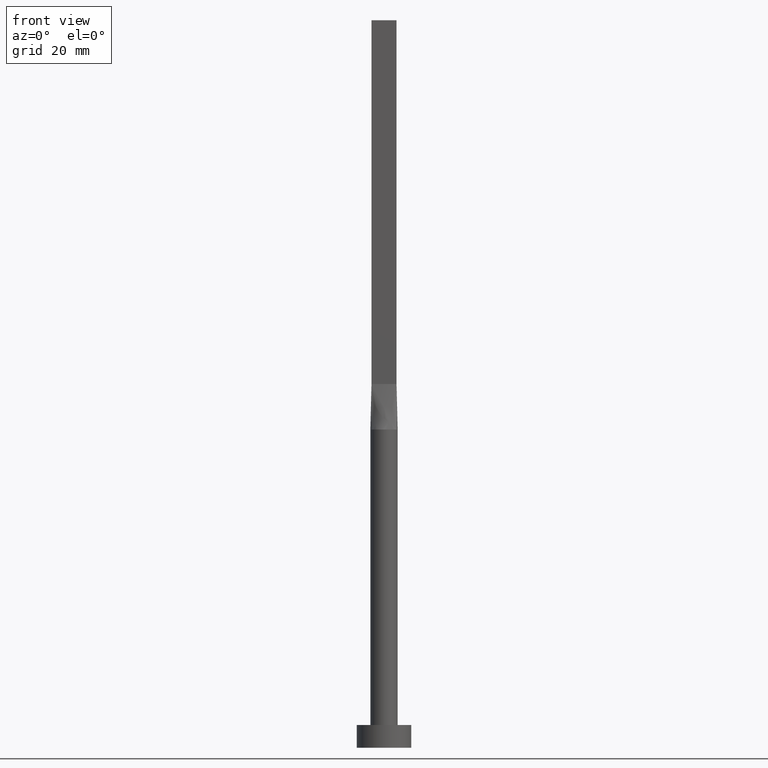
[diagram: clean part render]
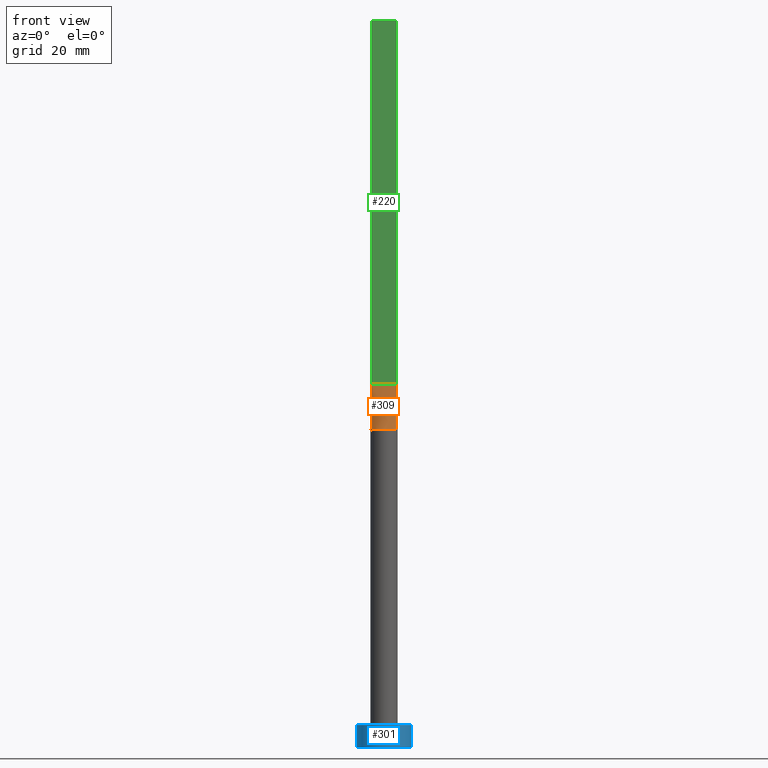
[diagram: same view with three faces highlighted in distinct colors, each labeled with its STEP entity id]
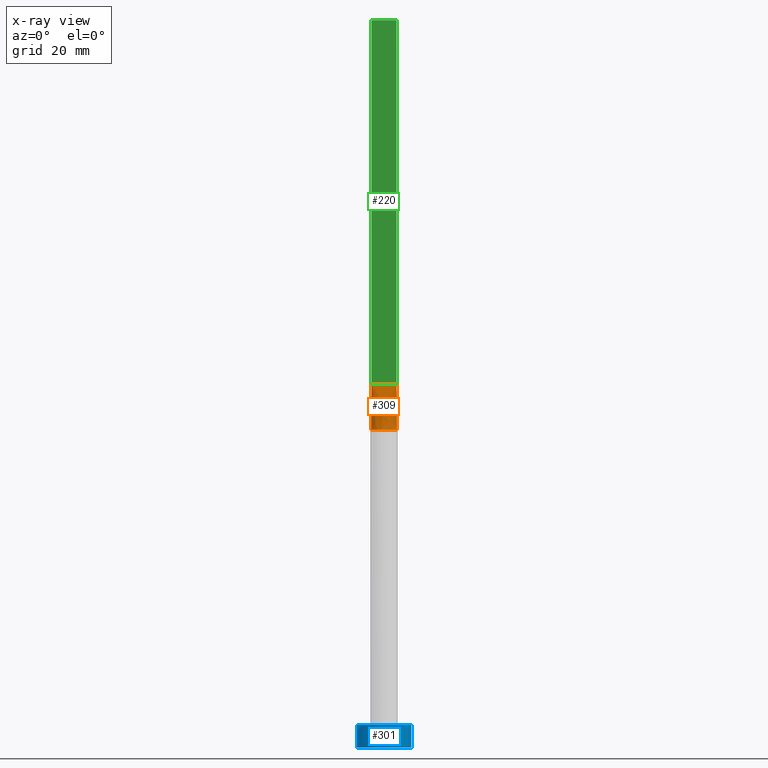
[diagram: x-ray of the same camera — body ghosted, the three highlighted faces saturated]
A machine part, front view with three faces highlighted in distinct colors.
The next image is the same camera in x-ray (body ghosted, the three faces saturated) — at least one of them is partly hidden behind the body in this view.
Their STEP definitions:

[orange] entity #309 — the highlighted face is a freeform B-spline surface patch.
#9 = ORIENTED_EDGE ( 'NONE', *, *, #328, .T. ) ;
#20 = CARTESIAN_POINT ( 'NONE',  ( -2.819380270465311700, -1.025229189260111973, 70.00000000000000000 ) ) ;
#25 = CARTESIAN_POINT ( 'NONE',  ( -1.338960936578150518, -2.706038443291638007, 70.00000000000000000 ) ) ;
#26 = CARTESIAN_POINT ( 'NONE',  ( 0.6998073349918603192, -2.936959335800557902, 70.00000000000001421 ) ) ;
#30 = CARTESIAN_POINT ( 'NONE',  ( 2.750000000000000000, -0.9999999999999997780, 80.00000000000000000 ) ) ;
#31 = CARTESIAN_POINT ( 'NONE',  ( 2.314486317179579533, -1.928337902455807606, 70.00000000000001421 ) ) ;
#48 = CIRCLE ( 'NONE', #387, 3.000000000000000444 ) ;
#56 = CARTESIAN_POINT ( 'NONE',  ( -2.750000000000000000, -0.9999999999999993339, 80.00000000000000000 ) ) ;
#65 = DIRECTION ( 'NONE',  ( 1.000000000000000000, 0.000000000000000000, 0.000000000000000000 ) ) ;
#67 = CARTESIAN_POINT ( 'NONE',  ( -2.115507543051069472, -2.149870311632975373, 70.00000000000000000 ) ) ;
#70 = CARTESIAN_POINT ( 'NONE',  ( 2.625980160873452984, -1.476334031700886618, 70.00000000000001421 ) ) ;
#90 = VERTEX_POINT ( 'NONE', #411 ) ;
#104 = EDGE_CURVE ( 'NONE', #90, #187, #48, .T. ) ;
#107 = CARTESIAN_POINT ( 'NONE',  ( -0.3502136323054380052, -3.000000000000000888, 70.00000000000000000 ) ) ;
#109 = CARTESIAN_POINT ( 'NONE',  ( -2.739088299662391979, -1.246032108968140983, 70.00000000000001421 ) ) ;
#110 = CARTESIAN_POINT ( 'NONE',  ( -2.784690135232656072, -1.012614594630055764, 75.00000000000001421 ) ) ;
#115 = CARTESIAN_POINT ( 'NONE',  ( -1.145833333333333703, -0.9999999999999993339, 79.99999999999998579 ) ) ;
#125 = LINE ( 'NONE', #386, #306 ) ;
#129 = DIRECTION ( 'NONE',  ( 1.000000000000000000, -7.885106708985487801E-17, 0.000000000000000000 ) ) ;
#155 = CARTESIAN_POINT ( 'NONE',  ( 1.338960936578149630, -2.706038443291638007, 69.99999999999998579 ) ) ;
#158 = CARTESIAN_POINT ( 'NONE',  ( 0.4583333333333329263, -0.9999999999999995559, 79.99999999999998579 ) ) ;
#164 = LINE ( 'NONE', #110, #500 ) ;
#167 = DIRECTION ( 'NONE',  ( 0.000000000000000000, 0.000000000000000000, 1.000000000000000000 ) ) ;
#169 = VECTOR ( 'NONE', #201, 1000.000000000000114 ) ;
#174 = VERTEX_POINT ( 'NONE', #509 ) ;
#187 = VERTEX_POINT ( 'NONE', #408 ) ;
#192 = CARTESIAN_POINT ( 'NONE',  ( -1.627925520694712525, -2.539128397820340055, 69.99999999999998579 ) ) ;
#195 = CARTESIAN_POINT ( 'NONE',  ( 2.819380270465311700, -1.025229189260112417, 70.00000000000000000 ) ) ;
#198 = CARTESIAN_POINT ( 'NONE',  ( 0.9166666666666661856, -0.9999999999999995559, 79.99999999999998579 ) ) ;
#200 = CARTESIAN_POINT ( 'NONE',  ( -2.314486317179578645, -1.928337902455806496, 70.00000000000000000 ) ) ;
#201 = DIRECTION ( 'NONE',  ( -0.006937837988376369981, 0.002522850177591328454, 0.9999727504442450510 ) ) ;
#210 = CARTESIAN_POINT ( 'NONE',  ( 2.784690135232656072, -1.012614594630056208, 75.00000000000001421 ) ) ;
#221 = ORIENTED_EDGE ( 'NONE', *, *, #104, .T. ) ;
#235 = VERTEX_POINT ( 'NONE', #504 ) ;
#241 = CARTESIAN_POINT ( 'NONE',  ( -2.291666666666666519, -0.9999999999999993339, 79.99999999999998579 ) ) ;
#246 = CARTESIAN_POINT ( 'NONE',  ( -0.9166666666666670737, -0.9999999999999993339, 79.99999999999998579 ) ) ;
#260 = ORIENTED_EDGE ( 'NONE', *, *, #480, .T. ) ;
#282 = CARTESIAN_POINT ( 'NONE',  ( 0.3502136323054372835, -3.000000000000000444, 70.00000000000001421 ) ) ;
#283 = CARTESIAN_POINT ( 'NONE',  ( -2.520833333333333037, -0.9999999999999993339, 79.99999999999998579 ) ) ;
#286 = CARTESIAN_POINT ( 'NONE',  ( 1.833333333333333037, -0.9999999999999995559, 79.99999999999998579 ) ) ;
#292 = CARTESIAN_POINT ( 'NONE',  ( 2.520833333333333037, -0.9999999999999995559, 79.99999999999998579 ) ) ;
#306 = VECTOR ( 'NONE', #129, 1000.000000000000000 ) ;
#309 = ADVANCED_FACE ( 'NONE', ( #414 ), #501, .T. ) ;
#328 = EDGE_CURVE ( 'NONE', #174, #90, #164, .T. ) ;
#331 = CARTESIAN_POINT ( 'NONE',  ( -0.2291666666666671015, -0.9999999999999993339, 80.00000000000000000 ) ) ;
#334 = CARTESIAN_POINT ( 'NONE',  ( 2.291666666666666519, -0.9999999999999995559, 79.99999999999998579 ) ) ;
#373 = CARTESIAN_POINT ( 'NONE',  ( -1.833333333333333481, -0.9999999999999993339, 79.99999999999998579 ) ) ;
#377 = CARTESIAN_POINT ( 'NONE',  ( 0.2291666666666662688, -0.9999999999999995559, 79.99999999999998579 ) ) ;
#386 = CARTESIAN_POINT ( 'NONE',  ( -2.750000000000000000, -0.9999999999999993339, 80.00000000000000000 ) ) ;
#387 = AXIS2_PLACEMENT_3D ( 'NONE', #569, #167, #65 ) ;
#402 = ORIENTED_EDGE ( 'NONE', *, *, #413, .F. ) ;
#408 = CARTESIAN_POINT ( 'NONE',  ( 2.819430526142641558, -1.025247683279450817, 70.00000000000000000 ) ) ;
#411 = CARTESIAN_POINT ( 'NONE',  ( -2.819413526938078007, -1.025241406939941369, 70.00000000000000000 ) ) ;
#413 = EDGE_CURVE ( 'NONE', #174, #235, #125, .T. ) ;
#414 = FACE_OUTER_BOUND ( 'NONE', #581, .T. ) ;
#425 = LINE ( 'NONE', #210, #169 ) ;
#430 = CARTESIAN_POINT ( 'NONE',  ( 1.145833333333332815, -0.9999999999999995559, 79.99999999999998579 ) ) ;
#467 = CARTESIAN_POINT ( 'NONE',  ( 2.739088299662391979, -1.246032108968142982, 70.00000000000001421 ) ) ;
#469 = CARTESIAN_POINT ( 'NONE',  ( -2.625980160873452540, -1.476334031700885507, 70.00000000000000000 ) ) ;
#480 = EDGE_CURVE ( 'NONE', #187, #235, #425, .T. ) ;
#500 = VECTOR ( 'NONE', #525, 1000.000000000000114 ) ;
#501 = B_SPLINE_SURFACE_WITH_KNOTS ( 'NONE', 3, 1, ( 
 ( #20, #56 ),
 ( #109, #283 ),
 ( #469, #241 ),
 ( #200, #373 ),
 ( #67, #562 ),
 ( #192, #115 ),
 ( #25, #246 ),
 ( #523, #514 ),
 ( #107, #331 ),
 ( #282, #377 ),
 ( #26, #158 ),
 ( #155, #198 ),
 ( #517, #430 ),
 ( #520, #564 ),
 ( #31, #286 ),
 ( #70, #334 ),
 ( #467, #292 ),
 ( #195, #30 ) ),
 .UNSPECIFIED., .F., .F., .F.,
 ( 4, 2, 2, 2, 2, 2, 2, 2, 4 ),
 ( 2, 2 ),
 ( 0.000000000000000000, 0.1250000000000000000, 0.2500000000000000000, 0.3750000000000000000, 0.5000000000000000000, 0.6250000000000000000, 0.7500000000000000000, 0.8750000000000000000, 1.000000000000000000 ),
 ( 0.000000000000000000, 1.000000000000000000 ),
 .UNSPECIFIED. ) ;
#504 = CARTESIAN_POINT ( 'NONE',  ( 2.750000000000000000, -0.9999999999999997780, 80.00000000000000000 ) ) ;
#509 = CARTESIAN_POINT ( 'NONE',  ( -2.750000000000000000, -0.9999999999999993339, 80.00000000000000000 ) ) ;
#514 = CARTESIAN_POINT ( 'NONE',  ( -0.4583333333333337589, -0.9999999999999993339, 79.99999999999998579 ) ) ;
#517 = CARTESIAN_POINT ( 'NONE',  ( 1.627925520694712080, -2.539128397820341831, 70.00000000000001421 ) ) ;
#520 = CARTESIAN_POINT ( 'NONE',  ( 2.115507543051068140, -2.149870311632976705, 69.99999999999998579 ) ) ;
#523 = CARTESIAN_POINT ( 'NONE',  ( -0.6998073349918614294, -2.936959335800558346, 70.00000000000001421 ) ) ;
#525 = DIRECTION ( 'NONE',  ( -0.006937837988376369981, -0.002522850177591328454, -0.9999727504442450510 ) ) ;
#562 = CARTESIAN_POINT ( 'NONE',  ( -1.604166666666666963, -0.9999999999999993339, 79.99999999999998579 ) ) ;
#564 = CARTESIAN_POINT ( 'NONE',  ( 1.604166666666666297, -0.9999999999999995559, 79.99999999999998579 ) ) ;
#569 = CARTESIAN_POINT ( 'NONE',  ( 0.000000000000000000, 0.000000000000000000, 70.00000000000000000 ) ) ;
#581 = EDGE_LOOP ( 'NONE', ( #221, #260, #402, #9 ) ) ;

[blue] entity #301 — the highlighted cylindrical surface (edge-blend (fillet) strip) has radius 6 mm, axis along (-0, -0, -1).
#40 = LINE ( 'NONE', #218, #489 ) ;
#81 = CARTESIAN_POINT ( 'NONE',  ( 6.000000000000000888, 7.347880794884120722E-16, 5.000000000000000000 ) ) ;
#103 = CIRCLE ( 'NONE', #566, 6.000000000000000888 ) ;
#111 = EDGE_CURVE ( 'NONE', #388, #398, #446, .T. ) ;
#113 = DIRECTION ( 'NONE',  ( 0.000000000000000000, 0.000000000000000000, 1.000000000000000000 ) ) ;
#153 = DIRECTION ( 'NONE',  ( -0.000000000000000000, -0.000000000000000000, -1.000000000000000000 ) ) ;
#168 = ORIENTED_EDGE ( 'NONE', *, *, #326, .F. ) ;
#194 = CYLINDRICAL_SURFACE ( 'NONE', #575, 6.000000000000000888 ) ;
#208 = DIRECTION ( 'NONE',  ( -0.000000000000000000, -0.000000000000000000, -1.000000000000000000 ) ) ;
#218 = CARTESIAN_POINT ( 'NONE',  ( 6.000000000000000888, 7.347880794884120722E-16, 5.000000000000000000 ) ) ;
#224 = ORIENTED_EDGE ( 'NONE', *, *, #455, .T. ) ;
#237 = FACE_OUTER_BOUND ( 'NONE', #337, .T. ) ;
#238 = CARTESIAN_POINT ( 'NONE',  ( 6.000000000000000888, 7.347880794884120722E-16, 0.000000000000000000 ) ) ;
#244 = DIRECTION ( 'NONE',  ( 1.000000000000000000, 0.000000000000000000, 0.000000000000000000 ) ) ;
#249 = DIRECTION ( 'NONE',  ( 0.000000000000000000, 0.000000000000000000, 1.000000000000000000 ) ) ;
#259 = LINE ( 'NONE', #296, #451 ) ;
#296 = CARTESIAN_POINT ( 'NONE',  ( -6.000000000000000888, 0.000000000000000000, 5.000000000000000000 ) ) ;
#301 = ADVANCED_FACE ( 'NONE', ( #237 ), #194, .T. ) ;
#326 = EDGE_CURVE ( 'NONE', #358, #570, #103, .T. ) ;
#329 = CARTESIAN_POINT ( 'NONE',  ( 0.000000000000000000, 0.000000000000000000, 5.000000000000000000 ) ) ;
#337 = EDGE_LOOP ( 'NONE', ( #496, #168, #224, #453 ) ) ;
#349 = DIRECTION ( 'NONE',  ( 1.000000000000000000, 0.000000000000000000, 0.000000000000000000 ) ) ;
#358 = VERTEX_POINT ( 'NONE', #393 ) ;
#371 = CARTESIAN_POINT ( 'NONE',  ( 0.000000000000000000, 0.000000000000000000, 5.000000000000000000 ) ) ;
#388 = VERTEX_POINT ( 'NONE', #466 ) ;
#393 = CARTESIAN_POINT ( 'NONE',  ( -6.000000000000000888, 0.000000000000000000, 5.000000000000000000 ) ) ;
#398 = VERTEX_POINT ( 'NONE', #238 ) ;
#446 = CIRCLE ( 'NONE', #534, 6.000000000000000888 ) ;
#451 = VECTOR ( 'NONE', #478, 1000.000000000000000 ) ;
#453 = ORIENTED_EDGE ( 'NONE', *, *, #111, .T. ) ;
#455 = EDGE_CURVE ( 'NONE', #358, #388, #259, .T. ) ;
#464 = DIRECTION ( 'NONE',  ( -1.000000000000000000, 0.000000000000000000, 0.000000000000000000 ) ) ;
#466 = CARTESIAN_POINT ( 'NONE',  ( -6.000000000000000888, 0.000000000000000000, 0.000000000000000000 ) ) ;
#478 = DIRECTION ( 'NONE',  ( -0.000000000000000000, -0.000000000000000000, -1.000000000000000000 ) ) ;
#489 = VECTOR ( 'NONE', #208, 1000.000000000000000 ) ;
#496 = ORIENTED_EDGE ( 'NONE', *, *, #527, .F. ) ;
#527 = EDGE_CURVE ( 'NONE', #570, #398, #40, .T. ) ;
#534 = AXIS2_PLACEMENT_3D ( 'NONE', #563, #113, #349 ) ;
#563 = CARTESIAN_POINT ( 'NONE',  ( 0.000000000000000000, 0.000000000000000000, 0.000000000000000000 ) ) ;
#566 = AXIS2_PLACEMENT_3D ( 'NONE', #329, #249, #244 ) ;
#570 = VERTEX_POINT ( 'NONE', #81 ) ;
#575 = AXIS2_PLACEMENT_3D ( 'NONE', #371, #153, #464 ) ;

[green] entity #220 — the highlighted planar face has unit normal (0, 1, -0).
#1 = LINE ( 'NONE', #88, #5 ) ;
#5 = VECTOR ( 'NONE', #262, 1000.000000000000000 ) ;
#6 = PLANE ( 'NONE',  #38 ) ;
#38 = AXIS2_PLACEMENT_3D ( 'NONE', #499, #98, #184 ) ;
#57 = DIRECTION ( 'NONE',  ( -0.000000000000000000, -0.000000000000000000, -1.000000000000000000 ) ) ;
#88 = CARTESIAN_POINT ( 'NONE',  ( -2.750000000000000000, -0.9999999999999993339, 160.0000000000000000 ) ) ;
#93 = FACE_OUTER_BOUND ( 'NONE', #540, .T. ) ;
#95 = ORIENTED_EDGE ( 'NONE', *, *, #351, .T. ) ;
#98 = DIRECTION ( 'NONE',  ( 7.885106708985487801E-17, 1.000000000000000000, -0.000000000000000000 ) ) ;
#125 = LINE ( 'NONE', #386, #306 ) ;
#129 = DIRECTION ( 'NONE',  ( 1.000000000000000000, -7.885106708985487801E-17, 0.000000000000000000 ) ) ;
#130 = ORIENTED_EDGE ( 'NONE', *, *, #413, .T. ) ;
#139 = VERTEX_POINT ( 'NONE', #536 ) ;
#145 = CARTESIAN_POINT ( 'NONE',  ( 2.750000000000000000, -0.9999999999999997780, 160.0000000000000000 ) ) ;
#174 = VERTEX_POINT ( 'NONE', #509 ) ;
#184 = DIRECTION ( 'NONE',  ( -1.000000000000000000, 7.885106708985487801E-17, 0.000000000000000000 ) ) ;
#203 = CARTESIAN_POINT ( 'NONE',  ( 2.750000000000000000, -0.9999999999999997780, 160.0000000000000000 ) ) ;
#220 = ADVANCED_FACE ( 'NONE', ( #93 ), #6, .F. ) ;
#235 = VERTEX_POINT ( 'NONE', #504 ) ;
#262 = DIRECTION ( 'NONE',  ( -0.000000000000000000, -0.000000000000000000, -1.000000000000000000 ) ) ;
#306 = VECTOR ( 'NONE', #129, 1000.000000000000000 ) ;
#311 = ORIENTED_EDGE ( 'NONE', *, *, #382, .F. ) ;
#315 = VERTEX_POINT ( 'NONE', #203 ) ;
#351 = EDGE_CURVE ( 'NONE', #139, #174, #1, .T. ) ;
#362 = LINE ( 'NONE', #145, #481 ) ;
#372 = DIRECTION ( 'NONE',  ( 1.000000000000000000, -7.885106708985487801E-17, 0.000000000000000000 ) ) ;
#382 = EDGE_CURVE ( 'NONE', #315, #235, #362, .T. ) ;
#383 = EDGE_CURVE ( 'NONE', #139, #315, #506, .T. ) ;
#386 = CARTESIAN_POINT ( 'NONE',  ( -2.750000000000000000, -0.9999999999999993339, 80.00000000000000000 ) ) ;
#413 = EDGE_CURVE ( 'NONE', #174, #235, #125, .T. ) ;
#420 = ORIENTED_EDGE ( 'NONE', *, *, #383, .F. ) ;
#459 = CARTESIAN_POINT ( 'NONE',  ( -2.750000000000000000, -0.9999999999999993339, 160.0000000000000000 ) ) ;
#481 = VECTOR ( 'NONE', #57, 1000.000000000000000 ) ;
#499 = CARTESIAN_POINT ( 'NONE',  ( -2.750000000000000000, -0.9999999999999993339, 160.0000000000000000 ) ) ;
#504 = CARTESIAN_POINT ( 'NONE',  ( 2.750000000000000000, -0.9999999999999997780, 80.00000000000000000 ) ) ;
#506 = LINE ( 'NONE', #459, #557 ) ;
#509 = CARTESIAN_POINT ( 'NONE',  ( -2.750000000000000000, -0.9999999999999993339, 80.00000000000000000 ) ) ;
#536 = CARTESIAN_POINT ( 'NONE',  ( -2.750000000000000000, -0.9999999999999993339, 160.0000000000000000 ) ) ;
#540 = EDGE_LOOP ( 'NONE', ( #130, #311, #420, #95 ) ) ;
#557 = VECTOR ( 'NONE', #372, 1000.000000000000000 ) ;